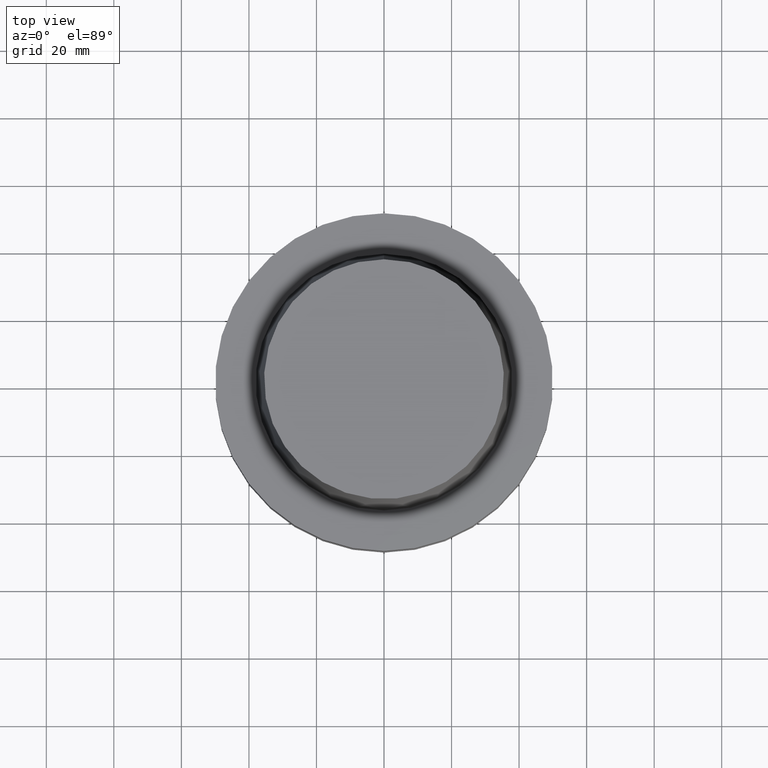
[diagram: clean part render]
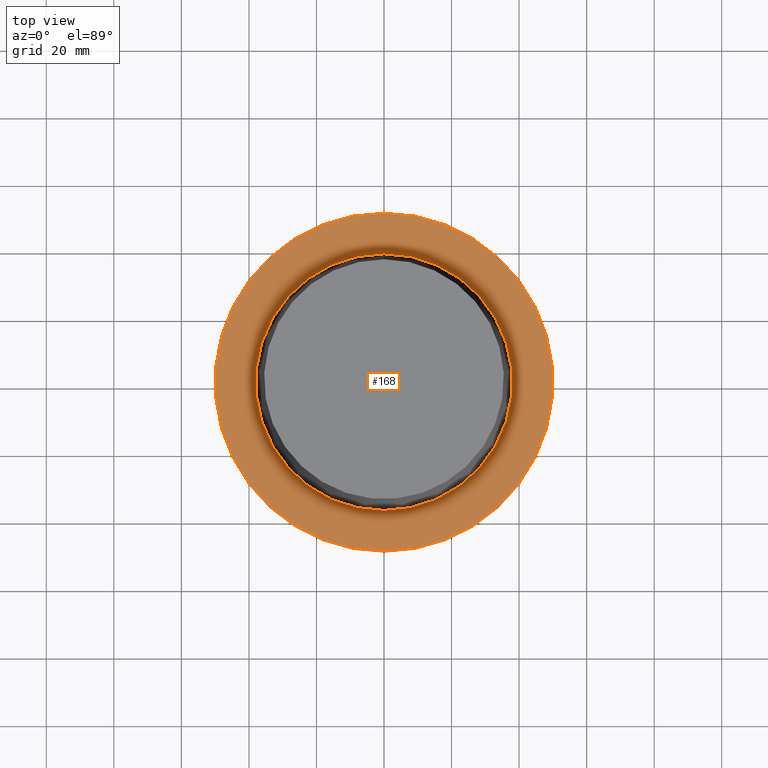
[diagram: same view with one face highlighted and labeled with its STEP entity id]
A machine part, top view. The second image highlights one B-rep face of the part: STEP entity #168.
In plain terms, the highlighted planar face has unit normal (-0, -0, 1).
Its self-contained STEP definition (entity closure, byte-faithful):
#73=EDGE_CURVE('Unnamed[1]',#207,#207,#208,.T.);
#145=EDGE_CURVE('Unnamed[1]',#321,#321,#322,.T.);
#168=ADVANCED_FACE('Unnamed[1]',(#355,#356),#357,.T.);
#207=VERTEX_POINT('',#397);
#208=CIRCLE('',#398,37.9999999999997);
#321=VERTEX_POINT('',#539);
#322=CIRCLE('',#540,50.0000000000001);
#355=FACE_OUTER_BOUND('',#581,.T.);
#356=FACE_BOUND('',#582,.T.);
#357=PLANE('',#583);
#397=CARTESIAN_POINT('',(-4.68386162474972E-031,37.9999999999997,4.6536578367599E-015));
#398=AXIS2_PLACEMENT_3D('',#623,#624,#625);
#539=CARTESIAN_POINT('',(-6.16297582203916E-031,50.0,6.12323399573677E-015));
#540=AXIS2_PLACEMENT_3D('',#753,#754,#755);
#581=EDGE_LOOP('',(#788));
#582=EDGE_LOOP('',(#789));
#583=AXIS2_PLACEMENT_3D('',#790,#791,#792);
#623=CARTESIAN_POINT('',(8.70163887006011E-031,-4.95400951266375E-014,-1.4210854715202E-014));
#624=DIRECTION('',(6.12323399573677E-017,5.38768000306608E-016,-1.0));
#625=DIRECTION('',(-3.78171780836933E-032,1.0,5.38768000306608E-016));
#753=CARTESIAN_POINT('',(8.70163887006011E-031,-4.95400951266375E-014,-1.4210854715202E-014));
#754=DIRECTION('',(6.12323399573677E-017,5.38768000306617E-016,-1.0));
#755=DIRECTION('',(-3.78171780836977E-032,1.0,5.38768000306617E-016));
#788=ORIENTED_EDGE('',*,*,#145,.F.);
#789=ORIENTED_EDGE('',*,*,#73,.T.);
#790=CARTESIAN_POINT('',(-5.42341872339444E-031,43.9999999999998,5.38844591624833E-015));
#791=DIRECTION('',(-6.12323399573677E-017,-1.22464679914735E-016,1.0));
#792=DIRECTION('',(1.23259516440783E-032,-1.0,-1.22464679914735E-016));